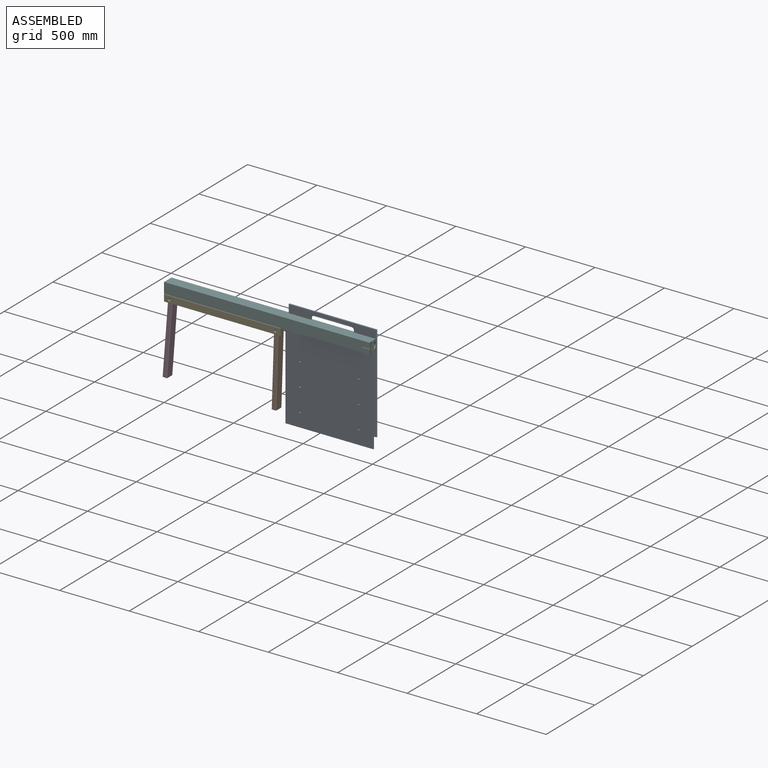
[diagram: assembled view]
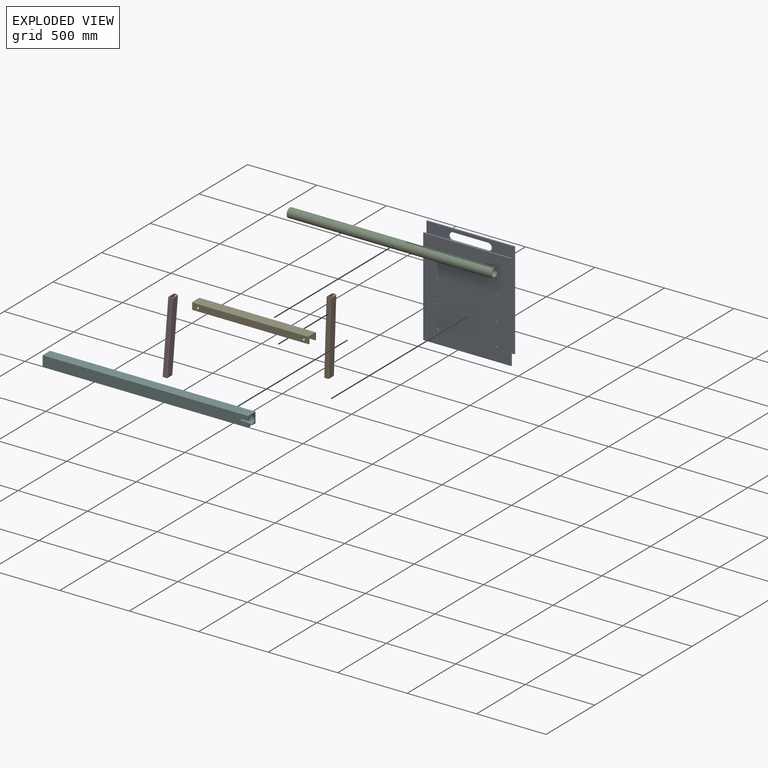
[diagram: exploded view]
GUIDED TOUR — MATED ASSEMBLY WITH SUBASSEMBLIES (Onshape document 70557b2124c0daec0d32242d, AutoMate assembly 70557b2124c0daec0d32242d_989a107bf7c6edacbf782923_fd09c190e4a29a3487687479_default)

This assembly has 13 component occurrences arranged in 6 top-level units: 5 individual components plus 1 subassembly (S0). The tour has two levels: first the top level, where each subassembly is treated as one rigid unit; then each subassembly is toured internally in its own section (nesting deeper than one subassembly level is flattened into its subassembly's section).

Components are labeled P0..P12 across the whole record; subassembly units are labeled S0..S0. A mate is a constraint between two units; its type names the relative motion it leaves free:
  CYLINDRICAL — leaves both rotation about and translation along the listed axis free,
  FASTENED — locks the two components together rigidly (no relative motion),
  REVOLUTE — leaves rotation about the listed axis free (a hinge).
Axis/direction vectors are unit vectors and 'through' points are millimeter coordinates, both in the assembly's world frame.

TOP-LEVEL MATES (between units; each subassembly's internal mates are listed in its own section)
  1. CYLINDRICAL "Cylindrical 1": P6 <-> P12, axis (1.000, 0.000, 0.000) through (1411.62, 133.45, 10.81) mm
  2. REVOLUTE "Revolute 2": P8 <-> P9, axis (0.000, -1.000, 0.000) through (-28.56, 104.24, -57.14) mm
  3. REVOLUTE "Revolute 1": P3 <-> P9, axis (0.000, -1.000, 0.000) through (733.44, 104.24, -57.14) mm
  4. FASTENED "Fastened 1": P12 <-> P9, direction (0.000, 0.000, -1.000) through (-66.66, 133.45, -27.29) mm
  5. FASTENED "Fastened 2": P6 <-> S0, direction (0.000, -1.000, 0.000) through (1411.62, 138.53, 43.43) mm

TOP-LEVEL ASSEMBLY ORDER
  1. P8 — the base component [order verified]
  2. P9 [order verified]
  3. P6 [order verified]
  4. P3 [order verified]
  5. P12 [order verified]
  6. S0 [order verified]
Order-tag legend:
  [order verified] — this step's position reverses a verified removal order: the component was checked to insert without passing through the ones already placed.

Of the 13 component occurrences, 6 carry the full construction recipe — the FeatureScript program that regenerates the part's solid from scratch; the rest are supplied as boundary geometry only. Each toured unit is shown spotlighted twice — assembled, then exploded with a leader line back to its socket (green = recipe-attached component, orange = geometry-only, blue = subassembly unit; the rest desaturated gray).
NOTE — document 2 of 2 of this assembly tour. The two overview renders and the header above are repeated from document 1; the component sections below continue where the previous document stopped.
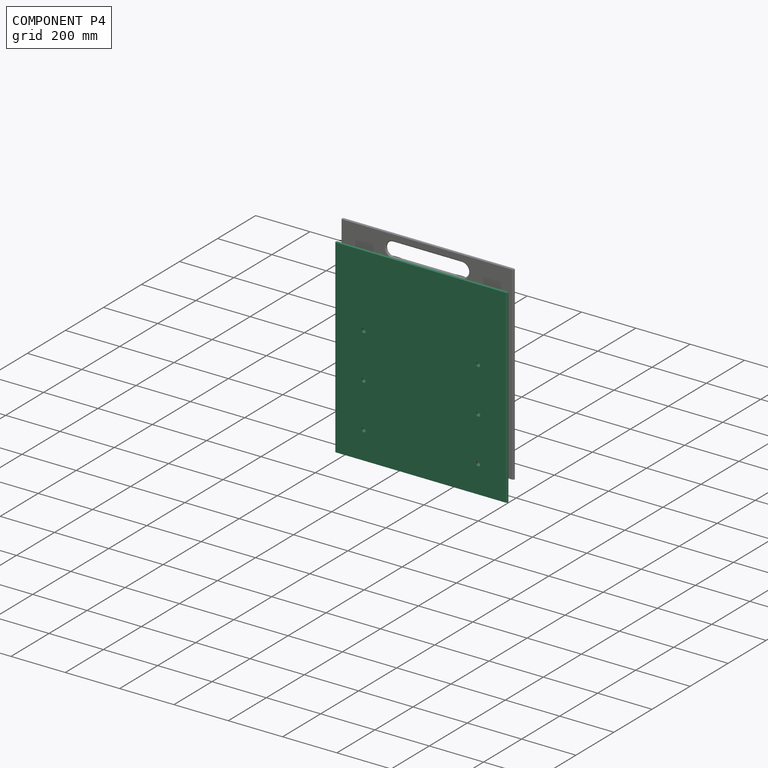
[diagram: component P4 — assembled]
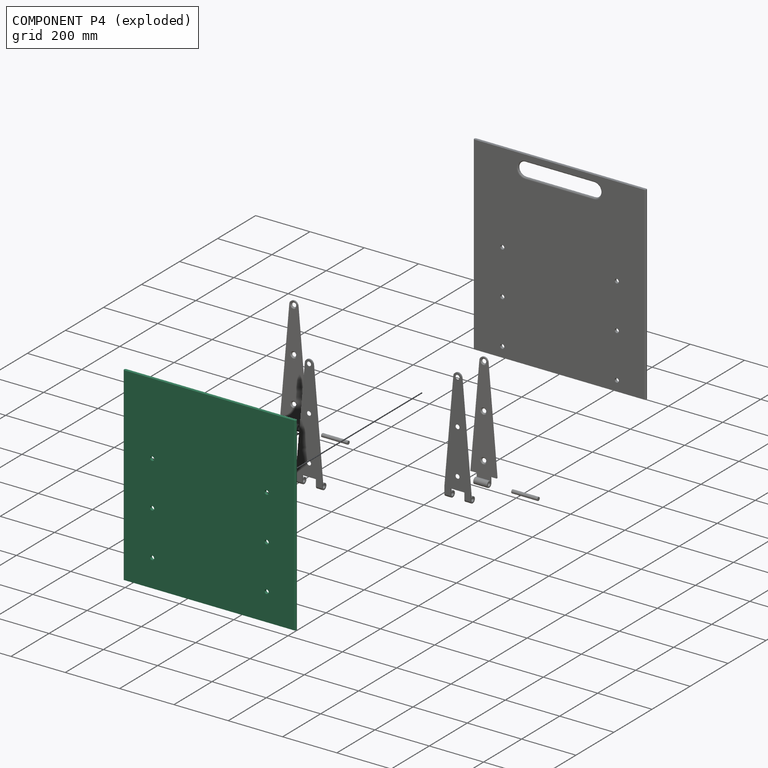
[diagram: component P4 — exploded]
COMPONENT P4 — recipe-attached (CADFS 00144170, mesh-verified: the recipe's output STEP matches this component's geometry to below the mesh-comparison resolution (tessellation chordal tolerance ~1.42 mm)).
Held by: FASTENED mate "Fastened 3" to P1; FASTENED mate "Fastened 1" to P11; FASTENED mate "Fastened 1" to P11; FASTENED mate "Fastened 3" to P1.
Construction recipe (FeatureScript — the CAD program that rebuilds this solid; sketch coordinates are in the units given by the * unit suffixes, e.g. mm):

FeatureScript 1511;
import(path : "onshape/std/geometry.fs", version : "1511.0");
import(path : "onshape/std/common.fs", version : "1511.0");
const mm = millimeter;
const VERTEX = EntityType.VERTEX;
const EDGE = EntityType.EDGE;
const FACE = EntityType.FACE;
const BODY = EntityType.BODY;
function v(x, y){return vector(x, y);}
function OD(order){return orderDisambiguation(order);}
function OSD(set){return originalSetDisambiguation(set);}
function TD(topology){return topologyDisambiguation(topology);}
function TDD(query){return trueDependencyDisambiguation(query);}
function sQuery(a, b, c) {return sketchEntityQuery(a, b, c);}

annotation { "Feature Type Name" : "Feature", "Feature Type Description" : "" }
export const myFeature = defineFeature(function(context is Context, id is Id, definition is map)
    precondition{}
    {
        {
            var Q0;
            Q0=qCreatedBy(makeId("Front.planeOp"),FACE);
            var sketch = newSketch(context, id + "F0", { "sketchPlane" : qUnion([Q0])});
            skLineSegment(sketch, "E0.bottom", {"start": v(0, 0) * mm, "end": v(698.5, 0) * mm});
            skLineSegment(sketch, "E0.top", {"start": v(0, 635) * mm, "end": v(698.5, 635) * mm});
            skLineSegment(sketch, "E0.left", {"start": v(0, 0) * mm, "end": v(0, 635) * mm});
            skLineSegment(sketch, "E0.right", {"start": v(698.5, 0) * mm, "end": v(698.5, 635) * mm});
            skSolve(sketch);
        }
        {
            var Q0;
            Q0=makeQuery(id+"F0.imprint","IMPRINT",FACE,{"disambiguationData":[TD([[makeQuery(id+"F0.imprint","IMPRINT",EDGE,{"derivedFrom":sQuery(id+"F0.wireOp",EDGE,"E0.bottom")}),1.0]])]});
            extrude(context, id + "F1", {"entities" : qUnion([Q0]), "depth" : 10.16 * mm});
        }
        {
            var Q0;
            Q0=makeQuery(id+"F1.opExtrude","CAP_FACE",FACE,{"disambiguationData":[OSD([sQuery(id+"F0.wireOp",EDGE,"E0.bottom"),sQuery(id+"F0.wireOp",EDGE,"E0.top"),sQuery(id+"F0.wireOp",EDGE,"E0.left"),sQuery(id+"F0.wireOp",EDGE,"E0.right")])],"isStart":false});
            var sketch = newSketch(context, id + "F2", { "sketchPlane" : qUnion([Q0])});
            skLineSegment(sketch, "E1", {"start": v(0, 317.5) * mm, "end": v(50.8, 317.5) * mm, "construction": true});
            skLineSegment(sketch, "E2", {"start": v(50.8, 444.5) * mm, "end": v(50.8, 190.5) * mm, "construction": true});
            skArc(sketch, "E3.0.startCap", {"start": v(25.4, 444.5) * mm, "mid": v(50.8, 469.9) * mm, "end": v(76.2, 444.5) * mm});
            skArc(sketch, "E3.0.endCap", {"start": v(76.2, 190.5) * mm, "mid": v(50.8, 165.1) * mm, "end": v(25.4, 190.5) * mm});
            skLineSegment(sketch, "E3.0.left", {"start": v(76.2, 444.5) * mm, "end": v(76.2, 190.5) * mm});
            skLineSegment(sketch, "E3.0.right", {"start": v(25.4, 444.5) * mm, "end": v(25.4, 190.5) * mm});
            skSolve(sketch);
        }
        {
            var Q0;
            Q0=makeQuery(id+"F1.opExtrude","CAP_EDGE",EDGE,{"disambiguationData":[OSD([sQuery(id+"F0.wireOp",EDGE,"E0.top")])],"isStart":false});
            var Q1;
            Q1=makeQuery(id+"F1.opExtrude","CAP_EDGE",EDGE,{"disambiguationData":[OSD([sQuery(id+"F0.wireOp",EDGE,"E0.top")])],"isStart":true});
            var Q2;
            Q2=makeQuery(id+"F1.opExtrude","CAP_EDGE",EDGE,{"disambiguationData":[OSD([sQuery(id+"F0.wireOp",EDGE,"E0.bottom")])],"isStart":false});
            var Q3;
            Q3=makeQuery(id+"F1.opExtrude","CAP_EDGE",EDGE,{"disambiguationData":[OSD([sQuery(id+"F0.wireOp",EDGE,"E0.bottom")])],"isStart":true});
            fillet(context, id + "F3", {"entities" : qUnion([Q0, Q1, Q2, Q3]), "radius" : 5.08 * mm, "tangentPropagation" : true, "allowEdgeOverflow" : false});
        }
        {
            var Q0;
            Q0=makeQuery(id+"F2.imprint","IMPRINT",FACE,{"disambiguationData":[TD([[makeQuery(id+"F2.imprint","IMPRINT",EDGE,{"derivedFrom":sQuery(id+"F2.wireOp",EDGE,"E3.0.startCap")}),1.0]])]});
            var sketch = newSketch(context, id + "F4", { "sketchPlane" : qUnion([Q0])});
            skLineSegment(sketch, "E4.0", {"start": v(698.5, 5.08) * mm, "end": v(698.5, 629.92) * mm});
            skPoint(sketch, "E5", {"position": v(596.9, 528.32) * mm});
            skPoint(sketch, "E6.1.0.0", {"position": v(431.8, 528.32) * mm});
            skPoint(sketch, "E6.2.0.0", {"position": v(266.7, 528.32) * mm});
            skLineSegment(sketch, "E6.direction1", {"start": v(596.9, 528.32) * mm, "end": v(431.8, 528.32) * mm, "construction": true});
            skPoint(sketch, "E7", {"position": v(596.9, 106.68) * mm});
            skPoint(sketch, "E8.1.0.0", {"position": v(431.8, 106.68) * mm});
            skPoint(sketch, "E8.2.0.0", {"position": v(266.7, 106.68) * mm});
            skLineSegment(sketch, "E8.direction1", {"start": v(596.9, 106.68) * mm, "end": v(431.8, 106.68) * mm, "construction": true});
            skSolve(sketch);
        }
        {
            var Q0;
            Q0=sQuery(id+"F4.wireOp",VERTEX,"E6.1.0.0");
            var Q1;
            Q1=sQuery(id+"F4.wireOp",VERTEX,"E6.2.0.0");
            var Q2;
            Q2=sQuery(id+"F4.wireOp",VERTEX,"E5");
            var Q3;
            Q3=sQuery(id+"F4.wireOp",VERTEX,"E7");
            var Q4;
            Q4=sQuery(id+"F4.wireOp",VERTEX,"E8.1.0.0");
            var Q5;
            Q5=sQuery(id+"F4.wireOp",VERTEX,"E8.2.0.0");
            var Q6;
            Q6=makeQuery(id+"F1.opExtrude","SWEPT_BODY",BODY,{"disambiguationData":[OSD([sQuery(id+"F0.wireOp",EDGE,"E0.bottom"),sQuery(id+"F0.wireOp",EDGE,"E0.top"),sQuery(id+"F0.wireOp",EDGE,"E0.left"),sQuery(id+"F0.wireOp",EDGE,"E0.right")])]});
            hole(context, id + "F5", {"style" : HoleStyle.SIMPLE, "endStyle" : HoleEndStyle.THROUGH, "holeDiameter" : 15.24 * mm, "locations" : qUnion([Q0, Q1, Q2, Q3, Q4, Q5]), "scope" : qUnion([Q6]), "isTappedThrough" : true});
        }
    });
PROVENANCE & LICENSES
Assembly (occurrences, transforms, mates, per-part STEP geometry): AutoMate dataset, Zenodo record 7776208, CC0.
Construction recipes: CADFS (HuggingFace VladPyatov/CADFS, CC-BY-4.0, layered over the ABC dataset), FeatureScript reconstruction programs keyed by ABC model id.
Join: ABC meta listings map ABC model id -> Onshape documentId; within a shared document, parts are matched by geometric signature (bounding-box dims + volume at 0.1% relative tolerance, exact B-rep face/solid counts).
Verification: 6 of this assembly's 13 components carry a recipe attachment, and every attachment is mesh-verified: the CADFS STEP and the AutoMate member STEP were compared as meshes in their shared local frame (symmetric sampled-point-to-mesh distance); worst across the 6 attachments: below the mesh-comparison resolution (tessellation chordal tolerance ~1.42 mm) on a 944 mm part.
Renders: orthographic iso camera (az 35 / el 25); the floor grid conveys scale (grid pitch printed in each image; no ruler). In the exploded view each component is displaced by its stored offset vector: the offsets alone carry the explosion direction (mate normal/axis signs are not orientation cues and do not encode it), and separation distances are assigned per mate-chain, not proportionally to assembly-order depth.
